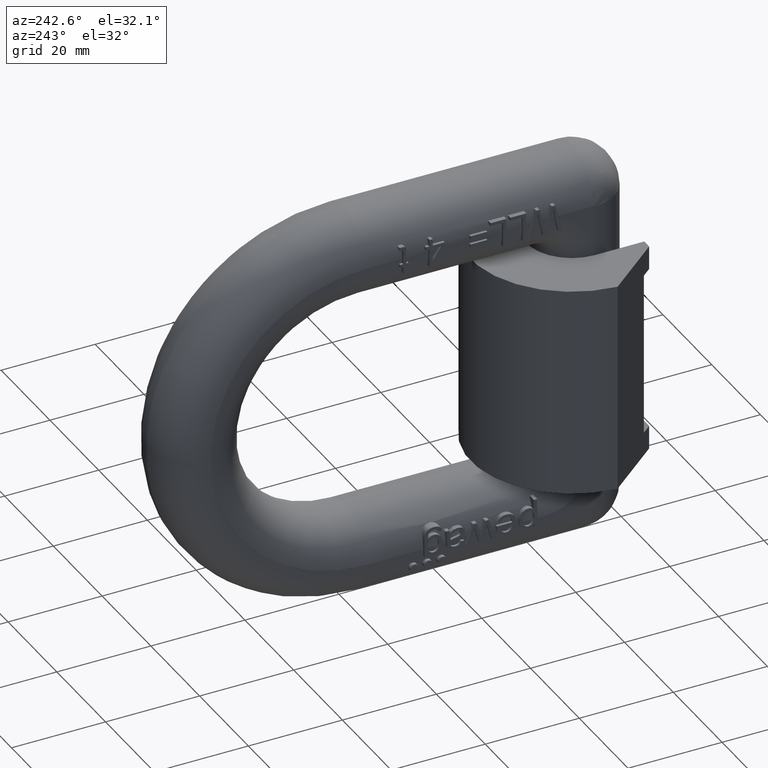
[diagram: clean part render]
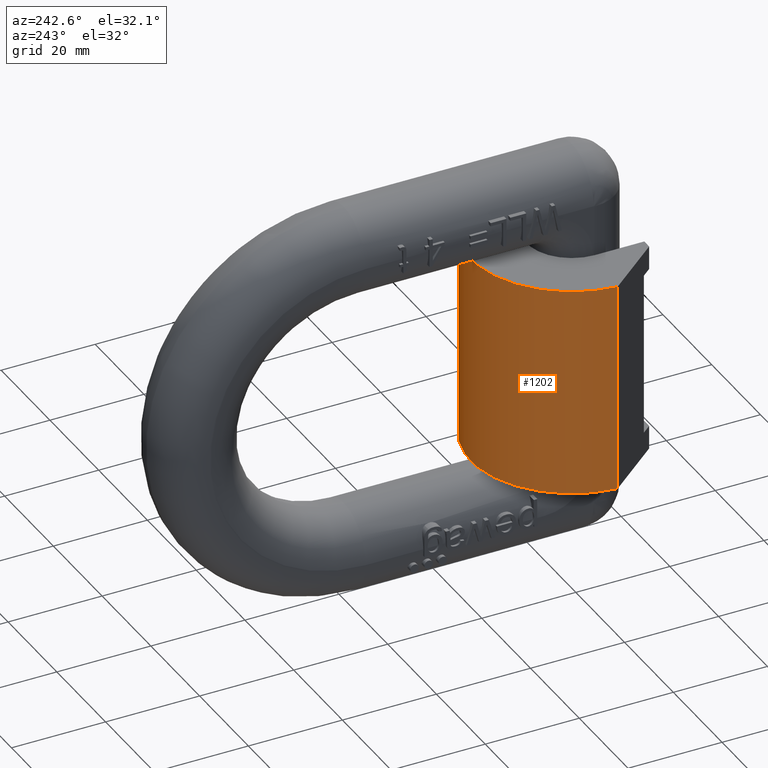
[diagram: same view with one face highlighted and labeled with its STEP entity id]
A machine part, auxiliary view. The second image highlights one B-rep face of the part: STEP entity #1202.
In plain terms, the highlighted cylindrical surface (partial cylindrical patch) has radius 21.5 mm, axis along (0, 0, -1).
Its self-contained STEP definition (entity closure, byte-faithful):
#1202=ADVANCED_FACE('',(#1718),#1660,.T.);
#1660=CYLINDRICAL_SURFACE('',#8715,21.5);
#1718=FACE_OUTER_BOUND('',#2154,.T.);
#2154=EDGE_LOOP('',(#2766,#2767,#2768,#2769));
#2638=CIRCLE('',#8713,21.5);
#2639=CIRCLE('',#8714,21.5);
#2766=ORIENTED_EDGE('',*,*,#6170,.F.);
#2767=ORIENTED_EDGE('',*,*,#6171,.F.);
#2768=ORIENTED_EDGE('',*,*,#6172,.F.);
#2769=ORIENTED_EDGE('',*,*,#6173,.T.);
#5322=VERTEX_POINT('',#10973);
#5323=VERTEX_POINT('',#10974);
#5324=VERTEX_POINT('',#10976);
#5325=VERTEX_POINT('',#10978);
#6170=EDGE_CURVE('',#5322,#5323,#7448,.T.);
#6171=EDGE_CURVE('',#5324,#5322,#2638,.T.);
#6172=EDGE_CURVE('',#5325,#5324,#7449,.T.);
#6173=EDGE_CURVE('',#5325,#5323,#2639,.T.);
#7448=LINE('',#10972,#8016);
#7449=LINE('',#10977,#8017);
#8016=VECTOR('',#9235,1.);
#8017=VECTOR('',#9238,1.);
#8713=AXIS2_PLACEMENT_3D('',#10975,#9236,#9237);
#8714=AXIS2_PLACEMENT_3D('',#10979,#9239,#9240);
#8715=AXIS2_PLACEMENT_3D('',#10980,#9241,#9242);
#9235=DIRECTION('',(0.,0.,-1.));
#9236=DIRECTION('',(0.,0.,1.));
#9237=DIRECTION('',(1.,0.,0.));
#9238=DIRECTION('',(0.,0.,1.));
#9239=DIRECTION('',(0.,0.,1.));
#9240=DIRECTION('',(1.,0.,0.));
#9241=DIRECTION('',(0.,0.,-1.));
#9242=DIRECTION('',(-1.,0.,0.));
#10972=CARTESIAN_POINT('',(-21.4565755038759,11.8657846266796,22.5));
#10973=CARTESIAN_POINT('',(-21.4565755038759,11.8657846266796,22.5));
#10974=CARTESIAN_POINT('',(-21.4565755038759,11.8657846266796,-22.5));
#10975=CARTESIAN_POINT('',(0.,10.5,22.5));
#10976=CARTESIAN_POINT('',(21.4565755038759,11.8657846266796,22.5));
#10977=CARTESIAN_POINT('',(21.4565755038759,11.8657846266796,22.5));
#10978=CARTESIAN_POINT('',(21.4565755038759,11.8657846266796,-22.5));
#10979=CARTESIAN_POINT('',(0.,10.5,-22.5));
#10980=CARTESIAN_POINT('',(0.,10.5,22.5));